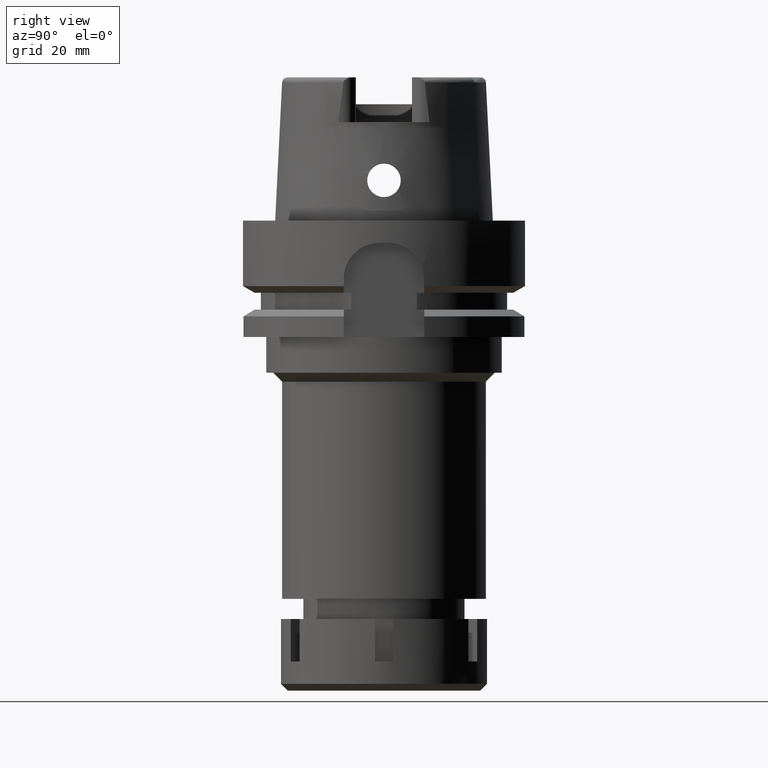
[diagram: clean part render]
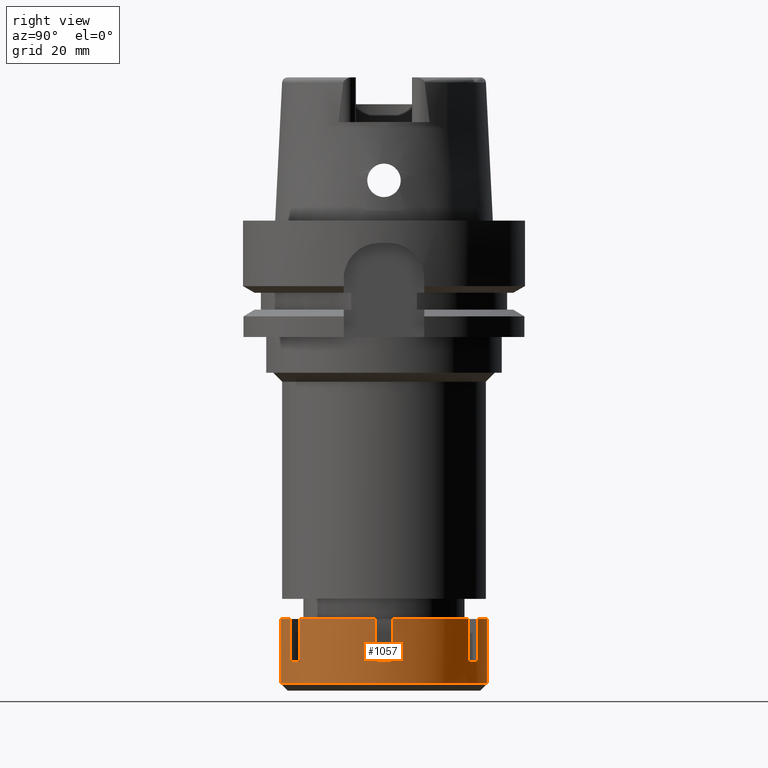
[diagram: same view with one face highlighted and labeled with its STEP entity id]
A machine part, right view. The second image highlights one B-rep face of the part: STEP entity #1057.
In plain terms, the highlighted cylindrical surface (partial cylindrical patch) has radius 23 mm, axis along (0, 0, -1).
Its self-contained STEP definition (entity closure, byte-faithful):
#14 = DIRECTION ( 'NONE',  ( 0.4227994969487938182, 0.9062232536079875000, 0.0000000000000000000 ) ) ;
#27 = VERTEX_POINT ( 'NONE', #5821 ) ;
#38 = EDGE_CURVE ( 'NONE', #5181, #3619, #1220, .T. ) ;
#83 = CARTESIAN_POINT ( 'NONE',  ( 9.724388429820001178, -20.84313483297999881, -9.500000000000000000 ) ) ;
#155 = VERTEX_POINT ( 'NONE', #1377 ) ;
#156 = AXIS2_PLACEMENT_3D ( 'NONE', #5145, #908, #4654 ) ;
#178 = ORIENTED_EDGE ( 'NONE', *, *, #5781, .T. ) ;
#203 = DIRECTION ( 'NONE',  ( 0.0000000000000000000, 0.0000000000000000000, -1.000000000000000000 ) ) ;
#249 = VECTOR ( 'NONE', #2380, 1000.000000000000000 ) ;
#283 = ORIENTED_EDGE ( 'NONE', *, *, #1138, .T. ) ;
#328 = VECTOR ( 'NONE', #4895, 1000.000000000000000 ) ;
#357 = CARTESIAN_POINT ( 'NONE',  ( 0.0000000000000000000, 0.0000000000000000000, 0.0000000000000000000 ) ) ;
#358 = LINE ( 'NONE', #4930, #1821 ) ;
#368 = VERTEX_POINT ( 'NONE', #1249 ) ;
#467 = CARTESIAN_POINT ( 'NONE',  ( 13.18849004495999999, 18.84313483298000236, 0.0000000000000000000 ) ) ;
#475 = VERTEX_POINT ( 'NONE', #4004 ) ;
#602 = CARTESIAN_POINT ( 'NONE',  ( 22.91287847478000117, 2.000000000000000000, -9.500000000000000000 ) ) ;
#627 = CARTESIAN_POINT ( 'NONE',  ( 0.0000000000000000000, 0.0000000000000000000, 0.0000000000000000000 ) ) ;
#629 = DIRECTION ( 'NONE',  ( 0.0000000000000000000, 0.0000000000000000000, -1.000000000000000000 ) ) ;
#659 = CARTESIAN_POINT ( 'NONE',  ( 0.0000000000000000000, 0.0000000000000000000, -14.50000000000000000 ) ) ;
#662 = LINE ( 'NONE', #4934, #4888 ) ;
#672 = EDGE_CURVE ( 'NONE', #27, #5021, #662, .T. ) ;
#781 = CIRCLE ( 'NONE', #4233, 23.00000000000000355 ) ;
#784 = DIRECTION ( 'NONE',  ( 0.0000000000000000000, 0.0000000000000000000, -1.000000000000000000 ) ) ;
#906 = CARTESIAN_POINT ( 'NONE',  ( 0.0000000000000000000, 0.0000000000000000000, -9.500000000000000000 ) ) ;
#908 = DIRECTION ( 'NONE',  ( 0.0000000000000000000, 0.0000000000000000000, -1.000000000000000000 ) ) ;
#973 = ORIENTED_EDGE ( 'NONE', *, *, #5622, .T. ) ;
#1038 = EDGE_CURVE ( 'NONE', #368, #4296, #2723, .T. ) ;
#1047 = VERTEX_POINT ( 'NONE', #3318 ) ;
#1057 = ADVANCED_FACE ( 'NONE', ( #5173 ), #6056, .T. ) ;
#1102 = ORIENTED_EDGE ( 'NONE', *, *, #1253, .F. ) ;
#1113 = CARTESIAN_POINT ( 'NONE',  ( 13.18849004495999999, 18.84313483298000236, 0.0000000000000000000 ) ) ;
#1115 = DIRECTION ( 'NONE',  ( 0.0000000000000000000, 0.0000000000000000000, -1.000000000000000000 ) ) ;
#1138 = EDGE_CURVE ( 'NONE', #5021, #2186, #1629, .T. ) ;
#1139 = DIRECTION ( 'NONE',  ( 0.0000000000000000000, 0.0000000000000000000, -1.000000000000000000 ) ) ;
#1199 = VERTEX_POINT ( 'NONE', #602 ) ;
#1220 = CIRCLE ( 'NONE', #5571, 23.00000000000000355 ) ;
#1249 = CARTESIAN_POINT ( 'NONE',  ( 9.724388429820001178, -20.84313483297999881, 0.0000000000000000000 ) ) ;
#1253 = EDGE_CURVE ( 'NONE', #475, #3619, #358, .T. ) ;
#1273 = DIRECTION ( 'NONE',  ( 0.0000000000000000000, 0.0000000000000000000, -1.000000000000000000 ) ) ;
#1314 = EDGE_CURVE ( 'NONE', #5181, #1047, #1777, .T. ) ;
#1348 = VECTOR ( 'NONE', #4810, 1000.000000000000000 ) ;
#1359 = VECTOR ( 'NONE', #4775, 1000.000000000000000 ) ;
#1376 = ORIENTED_EDGE ( 'NONE', *, *, #6094, .T. ) ;
#1377 = CARTESIAN_POINT ( 'NONE',  ( 22.91287847478000117, 2.000000000000000000, 0.0000000000000000000 ) ) ;
#1454 = AXIS2_PLACEMENT_3D ( 'NONE', #2166, #1273, #4470 ) ;
#1482 = DIRECTION ( 'NONE',  ( 0.0000000000000000000, 0.0000000000000000000, -1.000000000000000000 ) ) ;
#1487 = DIRECTION ( 'NONE',  ( 0.0000000000000000000, 0.0000000000000000000, -1.000000000000000000 ) ) ;
#1629 = CIRCLE ( 'NONE', #5586, 23.00000000000000000 ) ;
#1705 = EDGE_CURVE ( 'NONE', #5438, #2186, #2968, .T. ) ;
#1741 = ORIENTED_EDGE ( 'NONE', *, *, #672, .T. ) ;
#1777 = LINE ( 'NONE', #3143, #3995 ) ;
#1821 = VECTOR ( 'NONE', #2227, 1000.000000000000000 ) ;
#2011 = VERTEX_POINT ( 'NONE', #3242 ) ;
#2047 = CARTESIAN_POINT ( 'NONE',  ( 9.724388429822001356, 20.84313483297999881, -9.500000000000000000 ) ) ;
#2095 = CARTESIAN_POINT ( 'NONE',  ( 0.0000000000000000000, 23.00000000000000000, -14.50000000000000000 ) ) ;
#2166 = CARTESIAN_POINT ( 'NONE',  ( 0.0000000000000000000, 0.0000000000000000000, -9.500000000000000000 ) ) ;
#2178 = CARTESIAN_POINT ( 'NONE',  ( 13.18849004495999999, 18.84313483298000236, -9.500000000000000000 ) ) ;
#2186 = VERTEX_POINT ( 'NONE', #2095 ) ;
#2227 = DIRECTION ( 'NONE',  ( 0.0000000000000000000, 0.0000000000000000000, 1.000000000000000000 ) ) ;
#2248 = ORIENTED_EDGE ( 'NONE', *, *, #1038, .F. ) ;
#2380 = DIRECTION ( 'NONE',  ( 0.0000000000000000000, 0.0000000000000000000, -1.000000000000000000 ) ) ;
#2537 = CIRCLE ( 'NONE', #1454, 23.00000000000000355 ) ;
#2561 = DIRECTION ( 'NONE',  ( 0.9962121075990957308, -0.08695652173912968297, 0.0000000000000000000 ) ) ;
#2587 = ORIENTED_EDGE ( 'NONE', *, *, #3056, .T. ) ;
#2643 = CIRCLE ( 'NONE', #3535, 23.00000000000000000 ) ;
#2723 = LINE ( 'NONE', #5114, #249 ) ;
#2774 = AXIS2_PLACEMENT_3D ( 'NONE', #906, #4681, #14 ) ;
#2803 = ORIENTED_EDGE ( 'NONE', *, *, #5899, .T. ) ;
#2825 = ORIENTED_EDGE ( 'NONE', *, *, #4766, .F. ) ;
#2869 = CARTESIAN_POINT ( 'NONE',  ( 0.0000000000000000000, 0.0000000000000000000, -9.500000000000000000 ) ) ;
#2871 = AXIS2_PLACEMENT_3D ( 'NONE', #627, #1487, #5762 ) ;
#2925 = EDGE_CURVE ( 'NONE', #2011, #5077, #2971, .T. ) ;
#2933 = CARTESIAN_POINT ( 'NONE',  ( 22.91287847478000117, 2.000000000000000000, -9.500000000000000000 ) ) ;
#2936 = CIRCLE ( 'NONE', #3239, 23.00000000000000355 ) ;
#2968 = LINE ( 'NONE', #4868, #5690 ) ;
#2971 = LINE ( 'NONE', #2047, #1348 ) ;
#3054 = ORIENTED_EDGE ( 'NONE', *, *, #5812, .F. ) ;
#3056 = EDGE_CURVE ( 'NONE', #1199, #1047, #2537, .T. ) ;
#3136 = ORIENTED_EDGE ( 'NONE', *, *, #2925, .F. ) ;
#3143 = CARTESIAN_POINT ( 'NONE',  ( 22.91287847478000117, -2.000000000000000000, 0.0000000000000000000 ) ) ;
#3170 = ORIENTED_EDGE ( 'NONE', *, *, #4710, .T. ) ;
#3239 = AXIS2_PLACEMENT_3D ( 'NONE', #3380, #1115, #5794 ) ;
#3242 = CARTESIAN_POINT ( 'NONE',  ( 9.724388429823001445, 20.84313483297999881, -9.500000000000000000 ) ) ;
#3318 = CARTESIAN_POINT ( 'NONE',  ( 22.91287847478000117, -2.000000000000000000, -9.500000000000000000 ) ) ;
#3380 = CARTESIAN_POINT ( 'NONE',  ( 0.0000000000000000000, 0.0000000000000000000, 0.0000000000000000000 ) ) ;
#3463 = DIRECTION ( 'NONE',  ( 0.5734126106504978670, -0.8192667318687978373, 0.0000000000000000000 ) ) ;
#3498 = LINE ( 'NONE', #2933, #1359 ) ;
#3535 = AXIS2_PLACEMENT_3D ( 'NONE', #357, #784, #3990 ) ;
#3544 = DIRECTION ( 'NONE',  ( 0.0000000000000000000, 0.0000000000000000000, -1.000000000000000000 ) ) ;
#3546 = VERTEX_POINT ( 'NONE', #467 ) ;
#3619 = VERTEX_POINT ( 'NONE', #5193 ) ;
#3853 = CARTESIAN_POINT ( 'NONE',  ( 0.0000000000000000000, 23.00000000000000000, 0.0000000000000000000 ) ) ;
#3871 = DIRECTION ( 'NONE',  ( 0.0000000000000000000, -1.000000000000000000, 0.0000000000000000000 ) ) ;
#3930 = LINE ( 'NONE', #1113, #328 ) ;
#3952 = CARTESIAN_POINT ( 'NONE',  ( 0.0000000000000000000, -23.00000000000000000, -14.50000000000000000 ) ) ;
#3990 = DIRECTION ( 'NONE',  ( 0.0000000000000000000, 1.000000000000000000, 0.0000000000000000000 ) ) ;
#3995 = VECTOR ( 'NONE', #3544, 1000.000000000000000 ) ;
#4004 = CARTESIAN_POINT ( 'NONE',  ( 13.18849004495999999, -18.84313483298000236, -9.500000000000000000 ) ) ;
#4047 = CARTESIAN_POINT ( 'NONE',  ( 9.724388429822001356, 20.84313483297999881, 0.0000000000000000000 ) ) ;
#4233 = AXIS2_PLACEMENT_3D ( 'NONE', #2869, #1482, #3463 ) ;
#4296 = VERTEX_POINT ( 'NONE', #83 ) ;
#4312 = DIRECTION ( 'NONE',  ( 0.0000000000000000000, 0.0000000000000000000, 1.000000000000000000 ) ) ;
#4470 = DIRECTION ( 'NONE',  ( 0.9962121075990957308, 0.08695652173912968297, 0.0000000000000000000 ) ) ;
#4654 = DIRECTION ( 'NONE',  ( 0.0000000000000000000, -1.000000000000000000, 0.0000000000000000000 ) ) ;
#4681 = DIRECTION ( 'NONE',  ( 0.0000000000000000000, 0.0000000000000000000, -1.000000000000000000 ) ) ;
#4710 = EDGE_CURVE ( 'NONE', #3546, #155, #5645, .T. ) ;
#4766 = EDGE_CURVE ( 'NONE', #3546, #5681, #3930, .T. ) ;
#4775 = DIRECTION ( 'NONE',  ( 0.0000000000000000000, 0.0000000000000000000, 1.000000000000000000 ) ) ;
#4810 = DIRECTION ( 'NONE',  ( 0.0000000000000000000, 0.0000000000000000000, 1.000000000000000000 ) ) ;
#4868 = CARTESIAN_POINT ( 'NONE',  ( 0.0000000000000000000, 23.00000000000000000, 0.0000000000000000000 ) ) ;
#4888 = VECTOR ( 'NONE', #203, 1000.000000000000000 ) ;
#4895 = DIRECTION ( 'NONE',  ( 0.0000000000000000000, 0.0000000000000000000, -1.000000000000000000 ) ) ;
#4930 = CARTESIAN_POINT ( 'NONE',  ( 13.18849004495999999, -18.84313483298000236, -9.500000000000000000 ) ) ;
#4934 = CARTESIAN_POINT ( 'NONE',  ( 0.0000000000000000000, -23.00000000000000000, 0.0000000000000000000 ) ) ;
#5021 = VERTEX_POINT ( 'NONE', #3952 ) ;
#5077 = VERTEX_POINT ( 'NONE', #4047 ) ;
#5114 = CARTESIAN_POINT ( 'NONE',  ( 9.724388429820001178, -20.84313483297999881, 0.0000000000000000000 ) ) ;
#5145 = CARTESIAN_POINT ( 'NONE',  ( 0.0000000000000000000, 0.0000000000000000000, 0.0000000000000000000 ) ) ;
#5173 = FACE_OUTER_BOUND ( 'NONE', #6074, .T. ) ;
#5181 = VERTEX_POINT ( 'NONE', #6121 ) ;
#5193 = CARTESIAN_POINT ( 'NONE',  ( 13.18849004495999999, -18.84313483298000236, 0.0000000000000000000 ) ) ;
#5213 = ORIENTED_EDGE ( 'NONE', *, *, #1314, .F. ) ;
#5438 = VERTEX_POINT ( 'NONE', #3853 ) ;
#5550 = ORIENTED_EDGE ( 'NONE', *, *, #38, .T. ) ;
#5571 = AXIS2_PLACEMENT_3D ( 'NONE', #5912, #1139, #2561 ) ;
#5586 = AXIS2_PLACEMENT_3D ( 'NONE', #659, #4312, #3871 ) ;
#5601 = ORIENTED_EDGE ( 'NONE', *, *, #1705, .F. ) ;
#5622 = EDGE_CURVE ( 'NONE', #2011, #5681, #5755, .T. ) ;
#5645 = CIRCLE ( 'NONE', #2871, 22.99999999999999289 ) ;
#5681 = VERTEX_POINT ( 'NONE', #2178 ) ;
#5690 = VECTOR ( 'NONE', #629, 1000.000000000000000 ) ;
#5755 = CIRCLE ( 'NONE', #2774, 23.00000000000001066 ) ;
#5762 = DIRECTION ( 'NONE',  ( 0.5734126106503841802, 0.8192667318688773292, 0.0000000000000000000 ) ) ;
#5781 = EDGE_CURVE ( 'NONE', #368, #27, #2936, .T. ) ;
#5794 = DIRECTION ( 'NONE',  ( 0.4227994969487119392, -0.9062232536080258027, 0.0000000000000000000 ) ) ;
#5812 = EDGE_CURVE ( 'NONE', #1199, #155, #3498, .T. ) ;
#5821 = CARTESIAN_POINT ( 'NONE',  ( 0.0000000000000000000, -23.00000000000000000, 0.0000000000000000000 ) ) ;
#5899 = EDGE_CURVE ( 'NONE', #5438, #5077, #2643, .T. ) ;
#5912 = CARTESIAN_POINT ( 'NONE',  ( 0.0000000000000000000, 0.0000000000000000000, 0.0000000000000000000 ) ) ;
#6056 = CYLINDRICAL_SURFACE ( 'NONE', #156, 23.00000000000000000 ) ;
#6074 = EDGE_LOOP ( 'NONE', ( #2825, #3170, #3054, #2587, #5213, #5550, #1102, #1376, #2248, #178, #1741, #283, #5601, #2803, #3136, #973 ) ) ;
#6094 = EDGE_CURVE ( 'NONE', #475, #4296, #781, .T. ) ;
#6121 = CARTESIAN_POINT ( 'NONE',  ( 22.91287847478000117, -2.000000000000000000, 0.0000000000000000000 ) ) ;